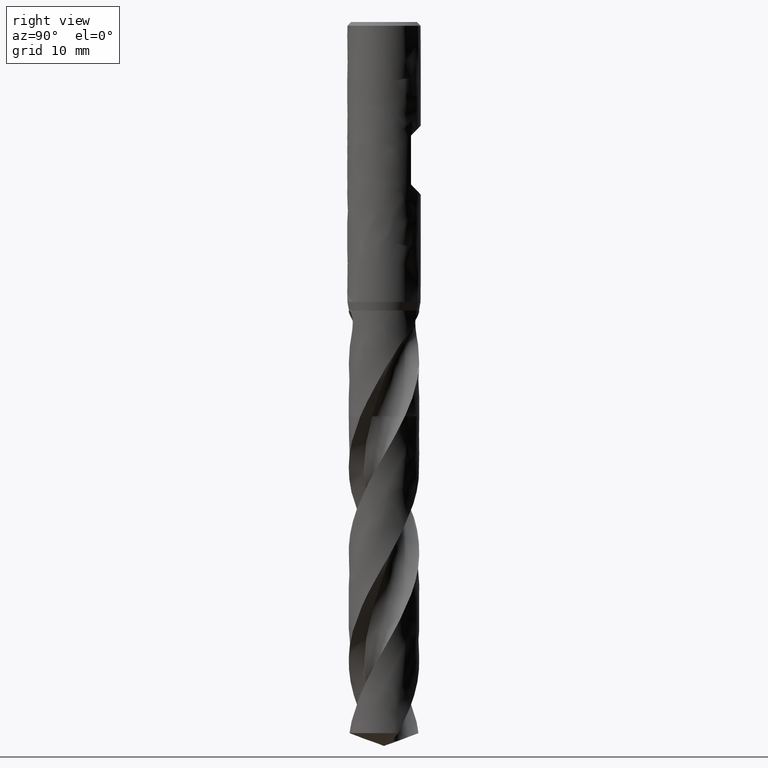
[diagram: clean part render]
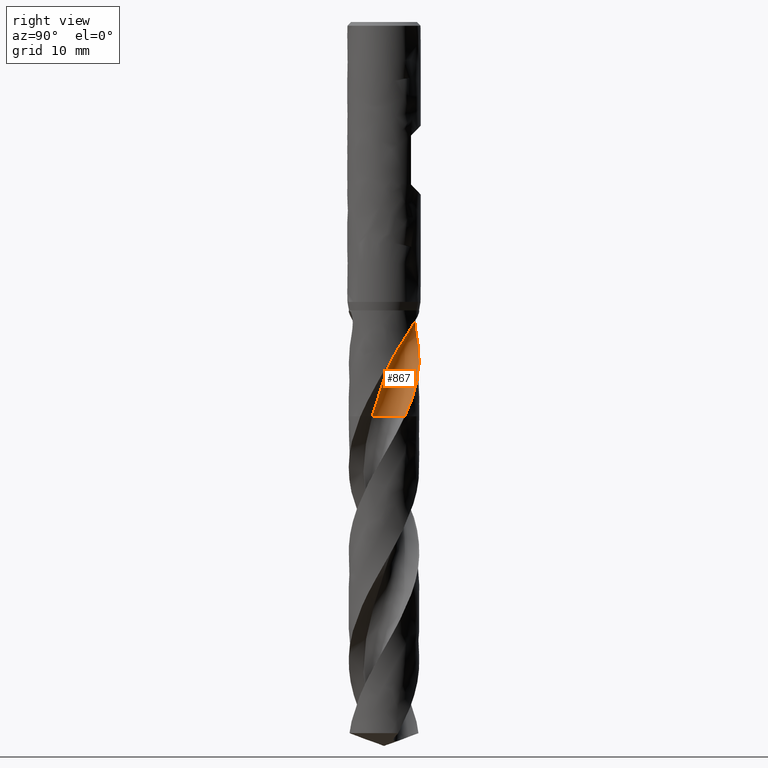
[diagram: same view with one face highlighted and labeled with its STEP entity id]
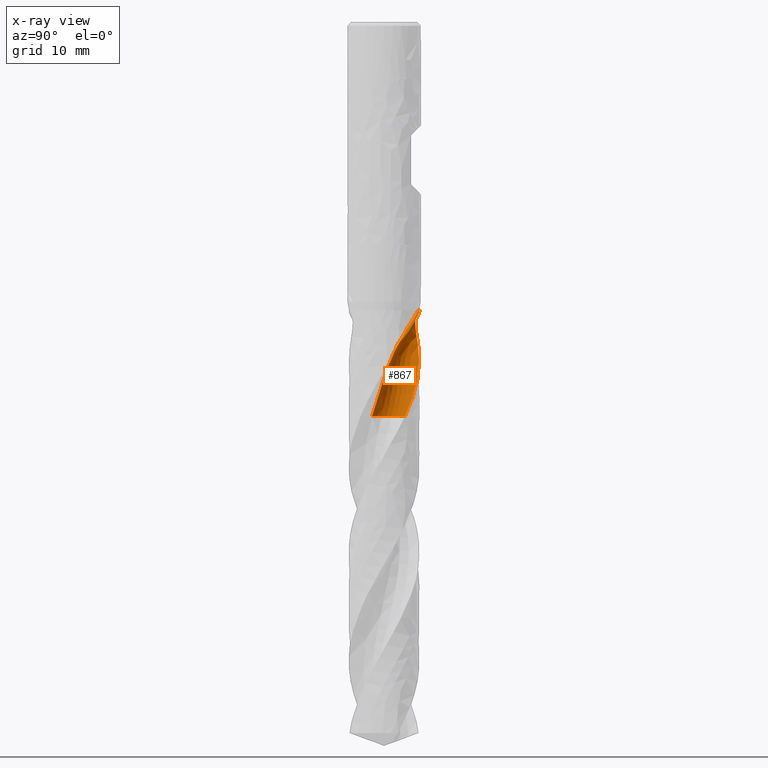
[diagram: x-ray of the same camera — body ghosted, the highlighted face saturated]
A machine part, right view. The second image highlights one B-rep face of the part: STEP entity #867.
The next image is the same camera in x-ray: the body ghosted, the highlighted face saturated — about 0% of this face is hidden behind the body in this view.
In plain terms, the highlighted face is a freeform B-spline surface patch.
Its self-contained STEP definition (entity closure, byte-faithful):
#252 = VERTEX_POINT('', #253);
#253 = CARTESIAN_POINT('', (-0.664754410634107, 5.7114447886277, -47.));
#260 = EDGE_CURVE('', #261, #252, #263, .T.);
#261 = VERTEX_POINT('', #262);
#262 = CARTESIAN_POINT('', (-0.954372345106729, 5.67388700982788, -46.98));
#263 = B_SPLINE_CURVE_WITH_KNOTS('', 3, (#264, #265, #266, #267, #268, #269, #270), .UNSPECIFIED., .F., .U., (4, 3, 4), (0., 0.196817261392043, 0.292900680336533), .UNSPECIFIED.);
#264 = CARTESIAN_POINT('', (-0.954372345050071, 5.67388700983743, -46.98));
#265 = CARTESIAN_POINT('', (-0.889673108887045, 5.68475519394751, -46.9800796579474));
#266 = CARTESIAN_POINT('', (-0.824621908757311, 5.69395484826379, -46.9833700583557));
#267 = CARTESIAN_POINT('', (-0.759728880211919, 5.70151754298538, -46.9893546574295));
#268 = CARTESIAN_POINT('', (-0.72804901634122, 5.70520954418561, -46.992276254529));
#269 = CARTESIAN_POINT('', (-0.696375920608476, 5.70851604167701, -46.9958427261837));
#270 = CARTESIAN_POINT('', (-0.664754410634167, 5.7114447886277, -47.));
#272 = EDGE_CURVE('', #273, #261, #275, .T.);
#273 = VERTEX_POINT('', #274);
#274 = CARTESIAN_POINT('', (-0.959180242780013, 5.6730762056629, -46.98));
#275 = LINE('', #276, #277);
#276 = CARTESIAN_POINT('', (-0.959180242780013, 5.6730762056629, -46.98));
#277 = VECTOR('', #278, 0.00487578541680345);
#278 = DIRECTION('', (0.00480789767328338, 0.000810804164980361, 0.));
#280 = EDGE_CURVE('', #273, #281, #283, .T.);
#281 = VERTEX_POINT('', #282);
#282 = CARTESIAN_POINT('', (-1.22275360408756, 5.61848499363404, -47.));
#283 = B_SPLINE_CURVE_WITH_KNOTS('', 3, (#284, #285, #286, #287, #288, #289, #290), .UNSPECIFIED., .F., .U., (4, 3, 4), (0., 0.197817445954899, 0.270103175527978), .UNSPECIFIED.);
#284 = CARTESIAN_POINT('', (-0.959180242787823, 5.67307620566158, -46.98));
#285 = CARTESIAN_POINT('', (-1.02419418911306, 5.66206931326532, -46.980080174174));
#286 = CARTESIAN_POINT('', (-1.08904966439381, 5.64933720727136, -46.983423732778));
#287 = CARTESIAN_POINT('', (-1.15299777331541, 5.63493927712078, -46.990586853441));
#288 = CARTESIAN_POINT('', (-1.17636545803049, 5.62967803800078, -46.9932043748665));
#289 = CARTESIAN_POINT('', (-1.19963255352973, 5.62419072658364, -46.9963336152621));
#290 = CARTESIAN_POINT('', (-1.22275360408753, 5.61848499363405, -47.));
#683 = VERTEX_POINT('', #684);
#684 = CARTESIAN_POINT('', (2.85427294277105, -1.92458653094202, -64.25));
#690 = EDGE_CURVE('', #683, #691, #693, .T.);
#691 = VERTEX_POINT('', #692);
#692 = CARTESIAN_POINT('', (4.07290109562731, 4.05881468722555, -50.3958224734813));
#693 = B_SPLINE_CURVE_WITH_KNOTS('', 3, (#694, #695, #696, #697, #698, #699, #700, #701, #702, #703, #704, #705, #706, #707, #708, #709, #710), .UNSPECIFIED., .F., .U., (4, 1, 1, 1, 1, 1, 1, 1, 1, 1, 1, 1, 1, 1, 4), (53.8, 54.0980597014925, 55.1588059701493, 56.219552238806, 57.2802985074627, 58.3410447761194, 59.4017910447761, 60.4625373134328, 61.5232835820896, 62.5840298507463, 63.644776119403, 64.7055223880597, 65.7662686567164, 66.8270149253731, 67.6541775265187), .UNSPECIFIED.);
#694 = CARTESIAN_POINT('', (2.85427294277105, -1.92458653094202, -64.25));
#695 = CARTESIAN_POINT('', (2.87399695657562, -1.89688687957887, -64.1506467661692));
#696 = CARTESIAN_POINT('', (2.96210833862529, -1.76924366394342, -63.6977114427861));
#697 = CARTESIAN_POINT('', (3.10404160179761, -1.53129938442744, -62.8911940298508));
#698 = CARTESIAN_POINT('', (3.25637007650234, -1.19944541939397, -61.830447761194));
#699 = CARTESIAN_POINT('', (3.37781179759161, -0.853258649123558, -60.7697014925373));
#700 = CARTESIAN_POINT('', (3.44277416145703, -0.491283940887161, -59.7089552238806));
#701 = CARTESIAN_POINT('', (3.44606539822317, -0.124563260132557, -58.6482089552239));
#702 = CARTESIAN_POINT('', (3.38566855335891, 0.236590920659753, -57.5874626865672));
#703 = CARTESIAN_POINT('', (3.27472603294861, 0.576809505504694, -56.5267164179105));
#704 = CARTESIAN_POINT('', (3.28881435116504, 0.938736952538879, -55.4659701492537));
#705 = CARTESIAN_POINT('', (3.38180518107454, 1.36005928558988, -54.405223880597));
#706 = CARTESIAN_POINT('', (3.54300397518063, 1.87531668939362, -53.3444776119403));
#707 = CARTESIAN_POINT('', (3.74252946590584, 2.5145298983049, -52.2837313432836));
#708 = CARTESIAN_POINT('', (3.93197343543839, 3.24407025792246, -51.3008462971306));
#709 = CARTESIAN_POINT('', (4.03484103101507, 3.79845085610073, -50.6715433405298));
#710 = CARTESIAN_POINT('', (4.07290109562731, 4.05881468722555, -50.3958224734813));
#867 = ADVANCED_FACE('', (#868), #1202, .T.);
#868 = FACE_OUTER_BOUND('', #869, .T.);
#869 = EDGE_LOOP('', (#870, #948, #993, #1004, #1137, #1138, #1139, #1140, #1201));
#870 = ORIENTED_EDGE('', *, *, #871, .T.);
#871 = EDGE_CURVE('', #683, #872, #874, .T.);
#872 = VERTEX_POINT('', #873);
#873 = CARTESIAN_POINT('', (4.62249029031134, 3.41980752615954, -64.25));
#874 = B_SPLINE_CURVE_WITH_KNOTS('', 3, (#875, #876, #877, #878, #879, #880, #881, #882, #883, #884, #885, #886, #887, #888, #889, #890, #891, #892, #893, #894, #895, #896, #897, #898, #899, #900, #901, #902, #903, #904, #905, #906, #907, #908, #909, #910, #911, #912, #913, #914, #915, #916, #917, #918, #919, #920, #921, #922, #923, #924, #925, #926, #927, #928, #929, #930, #931, #932, #933, #934, #935, #936, #937, #938, #939, #940, #941, #942, #943, #944, #945, #946, #947), .UNSPECIFIED., .F., .U., (4, 3, 3, 3, 3, 3, 3, 3, 3, 3, 3, 3, 3, 3, 3, 3, 3, 3, 3, 3, 3, 3, 3, 3, 4), (0., 0.297140151093783, 0.593989416282794, 0.890554132365704, 1.18683940260115, 1.48284918114889, 1.7785863373848, 2.07405270234201, 2.36924909887608, 2.66417535659184, 2.95883031207141, 3.25321179447637, 3.31153952167884, 3.60867903649739, 3.90552768050523, 4.20209178772877, 4.49837645886053, 4.79438564565391, 5.0901222151973, 5.38558799631866, 5.68078380971671, 5.97570948285573, 6.27036385016197, 6.564744738594, 6.58174929719078), .UNSPECIFIED.);
#875 = CARTESIAN_POINT('', (2.85427294277105, -1.92458653094202, -64.25));
#876 = CARTESIAN_POINT('', (2.79555179011013, -1.84482389316691, -64.25));
#877 = CARTESIAN_POINT('', (2.74021738511478, -1.76245405919901, -64.25));
#878 = CARTESIAN_POINT('', (2.68857712704352, -1.6779346182342, -64.25));
#879 = CARTESIAN_POINT('', (2.63698742229915, -1.59349791773367, -64.25));
#880 = CARTESIAN_POINT('', (2.58898923036808, -1.50675969772247, -64.25));
#881 = CARTESIAN_POINT('', (2.54484867455385, -1.41820087343353, -64.25));
#882 = CARTESIAN_POINT('', (2.50075043030031, -1.32972693847141, -64.25));
#883 = CARTESIAN_POINT('', (2.46042103385697, -1.23927261705622, -64.25));
#884 = CARTESIAN_POINT('', (2.42408366143789, -1.14733846845189, -64.25));
#885 = CARTESIAN_POINT('', (2.38778052885679, -1.05549094719961, -64.25));
#886 = CARTESIAN_POINT('', (2.35539501651412, -0.961997208430205, -64.25));
#887 = CARTESIAN_POINT('', (2.32710600336541, -0.867373657818004, -64.25));
#888 = CARTESIAN_POINT('', (2.29884329387996, -0.772838089985484, -64.25));
#889 = CARTESIAN_POINT('', (2.27461749222235, -0.677001004202918, -64.25));
#890 = CARTESIAN_POINT('', (2.2545621594177, -0.580390766862504, -64.25));
#891 = CARTESIAN_POINT('', (2.23452529739203, -0.483869506671362, -64.25));
#892 = CARTESIAN_POINT('', (2.21861444050567, -0.386399387202162, -64.25));
#893 = CARTESIAN_POINT('', (2.20691714677748, -0.288516790035155, -64.25));
#894 = CARTESIAN_POINT('', (2.19523056365857, -0.190723818919827, -64.25));
#895 = CARTESIAN_POINT('', (2.18772840910296, -0.0923399874178075, -64.25));
#896 = CARTESIAN_POINT('', (2.18445189227151, 0.00609428436804971, -64.25));
#897 = CARTESIAN_POINT('', (2.18117836920243, 0.104438616491431, -64.25));
#898 = CARTESIAN_POINT('', (2.18211676575838, 0.203013116911715, -64.25));
#899 = CARTESIAN_POINT('', (2.18726193675117, 0.301277305859331, -64.25));
#900 = CARTESIAN_POINT('', (2.19240239931788, 0.399451571717791, -64.25));
#901 = CARTESIAN_POINT('', (2.20175130847992, 0.497495276358613, -64.25));
#902 = CARTESIAN_POINT('', (2.21525749821405, 0.594871832423781, -64.25));
#903 = CARTESIAN_POINT('', (2.22875126362387, 0.69215881193643, -64.25));
#904 = CARTESIAN_POINT('', (2.24641923345215, 0.788957108422081, -64.25));
#905 = CARTESIAN_POINT('', (2.26816488952794, 0.884737923460706, -64.25));
#906 = CARTESIAN_POINT('', (2.28989036317911, 0.980429843086271, -64.25));
#907 = CARTESIAN_POINT('', (2.3157254498082, 1.07528018080048, -64.25));
#908 = CARTESIAN_POINT('', (2.34552927668432, 1.16877173972711, -64.25));
#909 = CARTESIAN_POINT('', (2.35143450370274, 1.18729583336322, -64.25));
#910 = CARTESIAN_POINT('', (2.35749653622065, 1.20577066856832, -64.25));
#911 = CARTESIAN_POINT('', (2.36371407486612, 1.22419228533696, -64.25));
#912 = CARTESIAN_POINT('', (2.39538814318819, 1.31803770896892, -64.25));
#913 = CARTESIAN_POINT('', (2.43114020446496, 1.41060354344542, -64.25));
#914 = CARTESIAN_POINT('', (2.47077164609501, 1.50137555992108, -64.25));
#915 = CARTESIAN_POINT('', (2.51036429238152, 1.59205871938276, -64.25));
#916 = CARTESIAN_POINT('', (2.55390192176157, 1.68111925377505, -64.25));
#917 = CARTESIAN_POINT('', (2.60114314328128, 1.76806337398596, -64.25));
#918 = CARTESIAN_POINT('', (2.64833908291902, 1.85492415610225, -64.25));
#919 = CARTESIAN_POINT('', (2.69931860404792, 1.93983288641168, -64.25));
#920 = CARTESIAN_POINT('', (2.75379959558101, 2.02231969596154, -64.25));
#921 = CARTESIAN_POINT('', (2.80822925266405, 2.10472878271514, -64.25));
#922 = CARTESIAN_POINT('', (2.86625403154324, 2.18487231581449, -64.25));
#923 = CARTESIAN_POINT('', (2.92755343798605, 2.26230763023562, -64.25));
#924 = CARTESIAN_POINT('', (2.98879584847844, 2.33967094560165, -64.25));
#925 = CARTESIAN_POINT('', (3.05341938656399, 2.41447332250167, -64.25));
#926 = CARTESIAN_POINT('', (3.12106777294792, 2.48630236417002, -64.25));
#927 = CARTESIAN_POINT('', (3.18865385681597, 2.55806525304081, -64.25));
#928 = CARTESIAN_POINT('', (3.25938324178674, 2.62699198818, -64.25));
#929 = CARTESIAN_POINT('', (3.33286670304785, 2.69270326478293, -64.25));
#930 = CARTESIAN_POINT('', (3.40628287986541, 2.75835437347043, -64.25));
#931 = CARTESIAN_POINT('', (3.48258256723036, 2.82091618063844, -64.25));
#932 = CARTESIAN_POINT('', (3.56134665438505, 2.88004503708853, -64.25));
#933 = CARTESIAN_POINT('', (3.64003877462294, 2.93911986737458, -64.25));
#934 = CARTESIAN_POINT('', (3.72133467115854, 2.99487604545239, -64.25));
#935 = CARTESIAN_POINT('', (3.80478860382699, 3.0470078637885, -64.25));
#936 = CARTESIAN_POINT('', (3.88816616594422, 3.09909197513735, -64.25));
#937 = CARTESIAN_POINT('', (3.97384998397809, 3.14765342956558, -64.25));
#938 = CARTESIAN_POINT('', (4.06137111735051, 3.19242645417659, -64.25));
#939 = CARTESIAN_POINT('', (4.14881173893255, 3.23715829151963, -64.25));
#940 = CARTESIAN_POINT('', (4.23824558874196, 3.27819017027593, -64.25));
#941 = CARTESIAN_POINT('', (4.32918410146668, 3.31529793870997, -64.25));
#942 = CARTESIAN_POINT('', (4.42003821102334, 3.35237126614512, -64.25));
#943 = CARTESIAN_POINT('', (4.51255939711496, 3.38559519200917, -64.25));
#944 = CARTESIAN_POINT('', (4.60624316522159, 3.41478855467592, -64.25));
#945 = CARTESIAN_POINT('', (4.61165469561278, 3.41647487422183, -64.25));
#946 = CARTESIAN_POINT('', (4.6170704370617, 3.41814787423554, -64.25));
#947 = CARTESIAN_POINT('', (4.62249029072458, 3.41980752481004, -64.25));
#948 = ORIENTED_EDGE('', *, *, #949, .F.);
#949 = EDGE_CURVE('', #950, #872, #952, .T.);
#950 = VERTEX_POINT('', #951);
#951 = CARTESIAN_POINT('', (1.91343511449502, 5.42229343199144, -58.2440826539286));
#952 = B_SPLINE_CURVE_WITH_KNOTS('', 3, (#953, #954, #955, #956, #957, #958, #959, #960, #961, #962, #963, #964, #965, #966, #967, #968, #969, #970, #971, #972, #973, #974, #975, #976, #977, #978, #979, #980, #981, #982, #983, #984, #985, #986, #987, #988, #989, #990, #991, #992), .UNSPECIFIED., .F., .U., (4, 3, 3, 3, 3, 3, 3, 3, 3, 3, 3, 3, 3, 4), (0., 0.443562925500025, 1.10892306190937, 1.7742623732252, 2.43954967252873, 2.88299910269086, 3.32643719244301, 3.76988934885671, 4.06549811813903, 4.36109313134654, 5.0261719091103, 5.46953466938533, 6.46691695922519, 6.91086626671248), .UNSPECIFIED.);
#953 = CARTESIAN_POINT('', (1.91343511449502, 5.42229343199144, -58.2440826539286));
#954 = CARTESIAN_POINT('', (1.97995384648725, 5.39882010300952, -58.3740255554765));
#955 = CARTESIAN_POINT('', (2.04630397777944, 5.37402934506557, -58.5038237912462));
#956 = CARTESIAN_POINT('', (2.11240704402111, 5.3479188924637, -58.6334753451914));
#957 = CARTESIAN_POINT('', (2.21156399029217, 5.30875228654121, -58.827957279229));
#958 = CARTESIAN_POINT('', (2.31018455731201, 5.26660757105578, -59.0221374788284));
#959 = CARTESIAN_POINT('', (2.40802198294162, 5.22148734841615, -59.2159965754306));
#960 = CARTESIAN_POINT('', (2.50585634635961, 5.17636853799347, -59.4098496044409));
#961 = CARTESIAN_POINT('', (2.60292789197036, 5.12826525054914, -59.6034184835201));
#962 = CARTESIAN_POINT('', (2.69899987452382, 5.07719407520778, -59.7966752448334));
#963 = CARTESIAN_POINT('', (2.79506434677832, 5.02612689228737, -59.9899168985574));
#964 = CARTESIAN_POINT('', (2.89014151133316, 4.97208445550826, -60.1828892383361));
#965 = CARTESIAN_POINT('', (2.98394378071256, 4.91513779191898, -60.3755983157048));
#966 = CARTESIAN_POINT('', (3.04646799085118, 4.87717980663242, -60.5040491829251));
#967 = CARTESIAN_POINT('', (3.10843312889896, 4.83792785425173, -60.6323976790985));
#968 = CARTESIAN_POINT('', (3.16975761278236, 4.79740937133871, -60.7606445933265));
#969 = CARTESIAN_POINT('', (3.23108052840398, 4.75689192461195, -60.8888882278736));
#970 = CARTESIAN_POINT('', (3.29177109437863, 4.71510218913478, -61.0170402107663));
#971 = CARTESIAN_POINT('', (3.35173164300436, 4.67208679213939, -61.1451144138724));
#972 = CARTESIAN_POINT('', (3.41169409368759, 4.62907003061749, -61.2731926797249));
#973 = CARTESIAN_POINT('', (3.47093174020917, 4.58482316124014, -61.4012050756109));
#974 = CARTESIAN_POINT('', (3.52932316587992, 4.53942485242166, -61.5291871619047));
#975 = CARTESIAN_POINT('', (3.56824735923319, 4.5091619751231, -61.6145010485829));
#976 = CARTESIAN_POINT('', (3.60679705821153, 4.4783865553857, -61.6998063421335));
#977 = CARTESIAN_POINT('', (3.64493161607636, 4.44713093062561, -61.7851189159316));
#978 = CARTESIAN_POINT('', (3.68306439935977, 4.41587676033764, -61.8704275197319));
#979 = CARTESIAN_POINT('', (3.72077943680059, 4.38414497691252, -61.9557502260126));
#980 = CARTESIAN_POINT('', (3.75806429494864, 4.35194815628958, -62.0410830702072));
#981 = CARTESIAN_POINT('', (3.84195396418602, 4.27950639932139, -62.2330790822651));
#982 = CARTESIAN_POINT('', (3.92368071157395, 4.20469824716227, -62.4251538953002));
#983 = CARTESIAN_POINT('', (4.00315667533455, 4.12761876058394, -62.6172217930256));
#984 = CARTESIAN_POINT('', (4.05613789176563, 4.0762351124019, -62.7452603895691));
#985 = CARTESIAN_POINT('', (4.10812744611462, 4.02383373764264, -62.8733087887391));
#986 = CARTESIAN_POINT('', (4.15909944079365, 3.97043975418215, -63.0013404609476));
#987 = CARTESIAN_POINT('', (4.27376528403934, 3.85032544089507, -63.2893586118635));
#988 = CARTESIAN_POINT('', (4.38329630485905, 3.72515840711746, -63.577403684765));
#989 = CARTESIAN_POINT('', (4.48716488601533, 3.59553212831022, -63.8653941443498));
#990 = CARTESIAN_POINT('', (4.53339829635734, 3.53783359356096, -63.9935828703759));
#991 = CARTESIAN_POINT('', (4.57852433674508, 3.47923548867196, -64.1218036239869));
#992 = CARTESIAN_POINT('', (4.62249029031134, 3.41980752615954, -64.25));
#993 = ORIENTED_EDGE('', *, *, #994, .T.);
#994 = EDGE_CURVE('', #950, #995, #997, .T.);
#995 = VERTEX_POINT('', #996);
#996 = CARTESIAN_POINT('', (0.423909315801476, 5.73435270034699, -55.5730162168472));
#997 = B_SPLINE_CURVE_WITH_KNOTS('', 3, (#998, #999, #1000, #1001, #1002, #1003), .UNSPECIFIED., .F., .U., (4, 1, 1, 4), (59.8059173460714, 60.4625373134328, 61.5232835820896, 62.4769837831528), .UNSPECIFIED.);
#998 = CARTESIAN_POINT('', (1.91343511449502, 5.42229343199144, -58.2440826539286));
#999 = CARTESIAN_POINT('', (1.78954210884358, 5.44742388202134, -58.0252093314748));
#1000 = CARTESIAN_POINT('', (1.46298408112562, 5.49655369569473, -57.4527539194687));
#1001 = CARTESIAN_POINT('', (0.958187522851964, 5.51054564419166, -56.5623984404416));
#1002 = CARTESIAN_POINT('', (0.599308370401399, 5.64747020475554, -55.8909162838683));
#1003 = CARTESIAN_POINT('', (0.423909315801475, 5.73435270034699, -55.5730162168472));
#1004 = ORIENTED_EDGE('', *, *, #1005, .T.);
#1005 = EDGE_CURVE('', #995, #281, #1006, .T.);
#1006 = B_SPLINE_CURVE_WITH_KNOTS('', 3, (#1007, #1008, #1009, #1010, #1011, #1012, #1013, #1014, #1015, #1016, #1017, #1018, #1019, #1020, #1021, #1022, #1023, #1024, #1025, #1026, #1027, #1028, #1029, #1030, #1031, #1032, #1033, #1034, #1035, #1036, #1037, #1038, #1039, #1040, #1041, #1042, #1043, #1044, #1045, #1046, #1047, #1048, #1049, #1050, #1051, #1052, #1053, #1054, #1055, #1056, #1057, #1058, #1059, #1060, #1061, #1062, #1063, #1064, #1065, #1066, #1067, #1068, #1069, #1070, #1071, #1072, #1073, #1074, #1075, #1076, #1077, #1078, #1079, #1080, #1081, #1082, #1083, #1084, #1085, #1086, #1087, #1088, #1089, #1090, #1091, #1092, #1093, #1094, #1095, #1096, #1097, #1098, #1099, #1100, #1101, #1102, #1103, #1104, #1105, #1106, #1107, #1108, #1109, #1110, #1111, #1112, #1113, #1114, #1115, #1116, #1117, #1118, #1119, #1120, #1121, #1122, #1123, #1124, #1125, #1126, #1127, #1128, #1129, #1130, #1131, #1132, #1133, #1134, #1135, #1136), .UNSPECIFIED., .F., .U., (4, 3, 3, 3, 3, 3, 3, 3, 3, 3, 3, 3, 3, 3, 3, 3, 3, 3, 3, 3, 3, 3, 3, 3, 3, 3, 3, 3, 3, 3, 3, 3, 3, 3, 3, 3, 3, 3, 3, 3, 3, 3, 3, 4), (0., 0.196934936986051, 0.639695864307723, 0.72723941647453, 0.785611992756981, 1.22931498381959, 1.52492324830761, 1.82045149734307, 2.11589777068747, 2.41125946720295, 2.70653460722115, 3.00171847220104, 3.29680721159822, 3.5918039594324, 3.88671273943952, 4.18153761141342, 4.47628330666319, 4.77096191168983, 5.06558751514685, 5.36017551554602, 5.65474342085264, 5.9493206146357, 6.2439430862134, 6.53865476439575, 6.83351401576397, 7.12860083674201, 7.42402036487428, 7.71991187489202, 7.91732665865085, 7.95627004865038, 8.15405795723778, 8.35217404092859, 8.55065896860591, 8.74952691796219, 8.88179526942686, 9.01413525176902, 9.14651585304514, 9.27889800401814, 9.41123886598623, 9.54349755662759, 9.67564056946268, 9.80764523240506, 10.0058848494969, 10.207900228472), .UNSPECIFIED.);
#1007 = CARTESIAN_POINT('', (0.423909315801471, 5.73435270034699, -55.5730162168472));
#1008 = CARTESIAN_POINT('', (0.388046779641487, 5.73700382139951, -55.5180970642259));
#1009 = CARTESIAN_POINT('', (0.351985551122402, 5.73933119538297, -55.4632906719108));
#1010 = CARTESIAN_POINT('', (0.315758092371031, 5.74132361281807, -55.4085835903538));
#1011 = CARTESIAN_POINT('', (0.234309348553672, 5.74580308509802, -55.2855878510912));
#1012 = CARTESIAN_POINT('', (0.152008752880573, 5.74858632163446, -55.1630804246358));
#1013 = CARTESIAN_POINT('', (0.0692418228182757, 5.74958307792599, -55.0408897654877));
#1014 = CARTESIAN_POINT('', (0.0528769843411645, 5.74978015851964, -55.0167299905768));
#1015 = CARTESIAN_POINT('', (0.0364936594536526, 5.74990757622059, -54.9925820605213));
#1016 = CARTESIAN_POINT('', (0.0200949102711407, 5.74996488637811, -54.9684445535315));
#1017 = CARTESIAN_POINT('', (0.00916049861088486, 5.75000309983254, -54.9523500676082));
#1018 = CARTESIAN_POINT('', (-0.00178080777254429, 5.75001014541875, -54.9362601598499));
#1019 = CARTESIAN_POINT('', (-0.0127280954573237, 5.7499859126424, -54.9201744021469));
#1020 = CARTESIAN_POINT('', (-0.095940874455735, 5.74980171389645, -54.7979029647547));
#1021 = CARTESIAN_POINT('', (-0.179507639307078, 5.74780530901877, -54.6758617698521));
#1022 = CARTESIAN_POINT('', (-0.263019552247358, 5.74398125999168, -54.5538542210452));
#1023 = CARTESIAN_POINT('', (-0.318657697911487, 5.74143356362951, -54.4725691260972));
#1024 = CARTESIAN_POINT('', (-0.374276226507173, 5.73807562980194, -54.3912919577505));
#1025 = CARTESIAN_POINT('', (-0.429750010043708, 5.73391793879791, -54.3099609451166));
#1026 = CARTESIAN_POINT('', (-0.485208777897571, 5.7297613732006, -54.2286519472183));
#1027 = CARTESIAN_POINT('', (-0.540525689846954, 5.72480528528835, -54.1472828715825));
#1028 = CARTESIAN_POINT('', (-0.595577557462688, 5.71907224758067, -54.0657934289576));
#1029 = CARTESIAN_POINT('', (-0.650614154406643, 5.71334080014305, -53.9843265904437));
#1030 = CARTESIAN_POINT('', (-0.705389805332268, 5.70683247049863, -53.9027336859077));
#1031 = CARTESIAN_POINT('', (-0.759786867862397, 5.69958102981475, -53.8209590048234));
#1032 = CARTESIAN_POINT('', (-0.814168358251443, 5.69233166498666, -53.7392077332176));
#1033 = CARTESIAN_POINT('', (-0.868175622957209, 5.6843391009592, -53.6572686749971));
#1034 = CARTESIAN_POINT('', (-0.921695592897352, 5.67564773695776, -53.5750905562191));
#1035 = CARTESIAN_POINT('', (-0.97519987867402, 5.66695891998268, -53.492936519948));
#1036 = CARTESIAN_POINT('', (-1.0282215902391, 5.65757101976812, -53.4105369860157));
#1037 = CARTESIAN_POINT('', (-1.08065092632506, 5.6475387183651, -53.327844740559));
#1038 = CARTESIAN_POINT('', (-1.13306405552797, 5.63750951813305, -53.2451780568135));
#1039 = CARTESIAN_POINT('', (-1.18488911756946, 5.62683550922524, -53.1622110451954));
#1040 = CARTESIAN_POINT('', (-1.23601110968488, 5.61558336566519, -53.078895783934));
#1041 = CARTESIAN_POINT('', (-1.28711662729113, 5.60433484820684, -52.9956073717443));
#1042 = CARTESIAN_POINT('', (-1.33752463855999, 5.59250747941773, -52.9119627943221));
#1043 = CARTESIAN_POINT('', (-1.38712356780944, 5.58017815196143, -52.8279199684434));
#1044 = CARTESIAN_POINT('', (-1.43670703498794, 5.56785266807471, -52.743903342246));
#1045 = CARTESIAN_POINT('', (-1.4854875034396, 5.55502417565757, -52.6594794887225));
#1046 = CARTESIAN_POINT('', (-1.53335502068938, 5.54177971237821, -52.574611849231));
#1047 = CARTESIAN_POINT('', (-1.58120826387847, 5.52853919858868, -52.4897695172111));
#1048 = CARTESIAN_POINT('', (-1.62815520849994, 5.51488128387929, -52.4044731092945));
#1049 = CARTESIAN_POINT('', (-1.67408534177523, 5.50090340475575, -52.3186913679726));
#1050 = CARTESIAN_POINT('', (-1.72000240691756, 5.4869295026462, -52.2329340334425));
#1051 = CARTESIAN_POINT('', (-1.76490997889792, 5.472633748265, -52.1466794309217));
#1052 = CARTESIAN_POINT('', (-1.80869220268447, 5.45812536645582, -52.0599004531981));
#1053 = CARTESIAN_POINT('', (-1.85246266853136, 5.44362088094662, -51.973144780412));
#1054 = CARTESIAN_POINT('', (-1.89511570430957, 5.42890149634997, -51.8858506979129));
#1055 = CARTESIAN_POINT('', (-1.93653442663408, 5.41408666484581, -51.7979997403232));
#1056 = CARTESIAN_POINT('', (-1.97794372119979, 5.39927520550405, -51.7101687794305));
#1057 = CARTESIAN_POINT('', (-2.01812742625917, 5.38436545424253, -51.6217643650708));
#1058 = CARTESIAN_POINT('', (-2.05696432601646, 5.36948766284978, -51.5327771006105));
#1059 = CARTESIAN_POINT('', (-2.09579424047991, 5.3546125474107, -51.4438058416037));
#1060 = CARTESIAN_POINT('', (-2.13328684558339, 5.33976595252493, -51.3542319363624));
#1061 = CARTESIAN_POINT('', (-2.16931203919096, 5.32509016605557, -51.2640558698987));
#1062 = CARTESIAN_POINT('', (-2.20533263490404, 5.31041625265645, -51.1738913126039));
#1063 = CARTESIAN_POINT('', (-2.23989617869979, 5.29590904383867, -51.0831006739394));
#1064 = CARTESIAN_POINT('', (-2.2728556524008, 5.28172577699286, -50.9916951900937));
#1065 = CARTESIAN_POINT('', (-2.30581287779681, 5.26754347764762, -50.9002959414024));
#1066 = CARTESIAN_POINT('', (-2.33717709340379, 5.25368049380168, -50.8082525838048));
#1067 = CARTESIAN_POINT('', (-2.36678566306006, 5.24030777961899, -50.7155938437952));
#1068 = CARTESIAN_POINT('', (-2.39639516634995, 5.22693464376055, -50.6229321820196));
#1069 = CARTESIAN_POINT('', (-2.42426094211788, 5.21404648616265, -50.5296189646585));
#1070 = CARTESIAN_POINT('', (-2.45019624417012, 5.20183028991283, -50.4357047928449));
#1071 = CARTESIAN_POINT('', (-2.47613553259099, 5.18961221598057, -50.341776186015));
#1072 = CARTESIAN_POINT('', (-2.50015684747859, 5.17806030778609, -50.2472012797));
#1073 = CARTESIAN_POINT('', (-2.5220375631729, 5.16738101265476, -50.1520598159126));
#1074 = CARTESIAN_POINT('', (-2.54392490397066, 5.156698484017, -50.0568895449304));
#1075 = CARTESIAN_POINT('', (-2.56368358865986, 5.14688292823986, -49.9610948019276));
#1076 = CARTESIAN_POINT('', (-2.58104369216972, 5.13816245939255, -49.8647976949445));
#1077 = CARTESIAN_POINT('', (-2.59841248853422, 5.12943762387957, -49.7684523683897));
#1078 = CARTESIAN_POINT('', (-2.61339456512413, 5.12180230587836, -49.6715299809288));
#1079 = CARTESIAN_POINT('', (-2.62565802906502, 5.11550778656493, -49.5742149961135));
#1080 = CARTESIAN_POINT('', (-2.63793095783258, 5.10920840920042, -49.4768249045039));
#1081 = CARTESIAN_POINT('', (-2.64749445384261, 5.10424585566792, -49.3789436534844));
#1082 = CARTESIAN_POINT('', (-2.65393065139595, 5.10089718555286, -49.2808493180264));
#1083 = CARTESIAN_POINT('', (-2.66037410569145, 5.09754473984897, -49.182644382281));
#1084 = CARTESIAN_POINT('', (-2.66369235328115, 5.09580643193983, -49.0840935036182));
#1085 = CARTESIAN_POINT('', (-2.66335519330562, 5.09598264462233, -48.9856210624357));
#1086 = CARTESIAN_POINT('', (-2.66301749466089, 5.09615913883394, -48.886991295132));
#1087 = CARTESIAN_POINT('', (-2.65901174247303, 5.09825897755518, -48.7882578166865));
#1088 = CARTESIAN_POINT('', (-2.65068482672605, 5.10258463421866, -48.6900746849503));
#1089 = CARTESIAN_POINT('', (-2.64512922199961, 5.10547065340448, -48.6245682372686));
#1090 = CARTESIAN_POINT('', (-2.63764071987588, 5.1093511342288, -48.5592240881711));
#1091 = CARTESIAN_POINT('', (-2.62799608774412, 5.11430704619909, -48.4943187066832));
#1092 = CARTESIAN_POINT('', (-2.62609352166797, 5.11528468327868, -48.4815150273628));
#1093 = CARTESIAN_POINT('', (-2.62410674533065, 5.11630425341371, -48.4687266914609));
#1094 = CARTESIAN_POINT('', (-2.62203396119915, 5.11736630566137, -48.4559562041155));
#1095 = CARTESIAN_POINT('', (-2.61150658702019, 5.12276031714516, -48.3910967251711));
#1096 = CARTESIAN_POINT('', (-2.59874956365067, 5.12925835272396, -48.3266293666073));
#1097 = CARTESIAN_POINT('', (-2.58352165265581, 5.13691696158879, -48.2629416172915));
#1098 = CARTESIAN_POINT('', (-2.56826847509486, 5.14458827782676, -48.1991481955214));
#1099 = CARTESIAN_POINT('', (-2.55050507591316, 5.15344014310909, -48.1360169208607));
#1100 = CARTESIAN_POINT('', (-2.52999902663889, 5.16348767067437, -48.0740519443606));
#1101 = CARTESIAN_POINT('', (-2.50945480008583, 5.17355390429346, -48.0119716041378));
#1102 = CARTESIAN_POINT('', (-2.48610456988855, 5.18484648686096, -47.9509148346063));
#1103 = CARTESIAN_POINT('', (-2.45976728154776, 5.19731131650079, -47.8915150180155));
#1104 = CARTESIAN_POINT('', (-2.43337916943653, 5.2098001998561, -47.8320005760083));
#1105 = CARTESIAN_POINT('', (-2.40390800527317, 5.22350536624751, -47.7739752615113));
#1106 = CARTESIAN_POINT('', (-2.3712893773148, 5.238271345495, -47.7181875886556));
#1107 = CARTESIAN_POINT('', (-2.3495945181831, 5.24809229321005, -47.6810828488291));
#1108 = CARTESIAN_POINT('', (-2.32646844673295, 5.25839910812936, -47.644897016855));
#1109 = CARTESIAN_POINT('', (-2.30193759866315, 5.26911598770285, -47.6098646656702));
#1110 = CARTESIAN_POINT('', (-2.27739346573606, 5.27983867107959, -47.5748133424635));
#1111 = CARTESIAN_POINT('', (-2.25139893505073, 5.29099082630964, -47.5408556612357));
#1112 = CARTESIAN_POINT('', (-2.22402606227966, 5.30247188340546, -47.5082229043387));
#1113 = CARTESIAN_POINT('', (-2.19664478798933, 5.31395646436678, -47.4755801315131));
#1114 = CARTESIAN_POINT('', (-2.16783170080634, 5.32579183862291, -47.444201718676));
#1115 = CARTESIAN_POINT('', (-2.13770778653021, 5.33785588222575, -47.4142987248461));
#1116 = CARTESIAN_POINT('', (-2.10758351961227, 5.3499200670548, -47.3843953809605));
#1117 = CARTESIAN_POINT('', (-2.07608834219932, 5.36223656799132, -47.3559085193657));
#1118 = CARTESIAN_POINT('', (-2.04338878609481, 5.37466857293219, -47.3290122320348));
#1119 = CARTESIAN_POINT('', (-2.01069942873782, 5.3870967004235, -47.3021243334551));
#1120 = CARTESIAN_POINT('', (-1.97674098798475, 5.39966478272985, -47.2767720689956));
#1121 = CARTESIAN_POINT('', (-1.94171533703423, 5.41223073694462, -47.2530800429626));
#1122 = CARTESIAN_POINT('', (-1.90671143374475, 5.42478888887434, -47.2294027274671));
#1123 = CARTESIAN_POINT('', (-1.87057344112155, 5.43736912985644, -47.2073367351235));
#1124 = CARTESIAN_POINT('', (-1.83352374668074, 5.44983400392701, -47.1869518693965));
#1125 = CARTESIAN_POINT('', (-1.79650645712278, 5.46228797580824, -47.1665848329442));
#1126 = CARTESIAN_POINT('', (-1.75851092783724, 5.47464958853816, -47.1478574142273));
#1127 = CARTESIAN_POINT('', (-1.71976421194311, 5.4867942421163, -47.130787068227));
#1128 = CARTESIAN_POINT('', (-1.68105806273406, 5.49892618059522, -47.1137345943827));
#1129 = CARTESIAN_POINT('', (-1.64153675238228, 5.51086217441244, -47.0983056592697));
#1130 = CARTESIAN_POINT('', (-1.60141848122617, 5.52249570828154, -47.0844737399806));
#1131 = CARTESIAN_POINT('', (-1.54117037684029, 5.53996651005648, -47.0637014860133));
#1132 = CARTESIAN_POINT('', (-1.4794102027226, 5.55679934118009, -47.0464787799423));
#1133 = CARTESIAN_POINT('', (-1.41679963883413, 5.57271736080339, -47.0325833320375));
#1134 = CARTESIAN_POINT('', (-1.3529965656779, 5.58893856226609, -47.0184232251138));
#1135 = CARTESIAN_POINT('', (-1.28812359363584, 5.60425849122104, -47.0076706743321));
#1136 = CARTESIAN_POINT('', (-1.22275360408754, 5.61848499363405, -47.));
#1137 = ORIENTED_EDGE('', *, *, #280, .F.);
#1138 = ORIENTED_EDGE('', *, *, #272, .T.);
#1139 = ORIENTED_EDGE('', *, *, #260, .T.);
#1140 = ORIENTED_EDGE('', *, *, #1141, .F.);
#1141 = EDGE_CURVE('', #691, #252, #1142, .T.);
#1142 = B_SPLINE_CURVE_WITH_KNOTS('', 3, (#1143, #1144, #1145, #1146, #1147, #1148, #1149, #1150, #1151, #1152, #1153, #1154, #1155, #1156, #1157, #1158, #1159, #1160, #1161, #1162, #1163, #1164, #1165, #1166, #1167, #1168, #1169, #1170, #1171, #1172, #1173, #1174, #1175, #1176, #1177, #1178, #1179, #1180, #1181, #1182, #1183, #1184, #1185, #1186, #1187, #1188, #1189, #1190, #1191, #1192, #1193, #1194, #1195, #1196, #1197, #1198, #1199, #1200), .UNSPECIFIED., .F., .U., (4, 3, 3, 3, 3, 3, 3, 3, 3, 3, 3, 3, 3, 3, 3, 3, 3, 3, 3, 4), (0., 0.447016472100389, 0.894195282930524, 1.34149781125237, 1.78888998605159, 2.23632814394527, 2.68375919471959, 3.13114117678853, 3.57842228421277, 4.0255361223479, 4.32262951476591, 4.61961299544637, 4.91645475613438, 5.2131139889188, 5.50953782020672, 5.64099475465222, 5.66695233494707, 5.96568525487832, 6.1639628865178, 6.33233071130661), .UNSPECIFIED.);
#1143 = CARTESIAN_POINT('', (4.07290109562731, 4.05881468722555, -50.3958224734813));
#1144 = CARTESIAN_POINT('', (4.0050459049763, 4.12690537419786, -50.2819718357662));
#1145 = CARTESIAN_POINT('', (3.93410358879567, 4.19467689907852, -50.1697125110395));
#1146 = CARTESIAN_POINT('', (3.86004041102603, 4.26175879482239, -50.0591806096677));
#1147 = CARTESIAN_POINT('', (3.78595033643502, 4.3288650520617, -49.9486085674743));
#1148 = CARTESIAN_POINT('', (3.70869518454316, 4.39531862148993, -49.8396966481814));
#1149 = CARTESIAN_POINT('', (3.62827657644825, 4.46072965834033, -49.7325845146081));
#1150 = CARTESIAN_POINT('', (3.54783571956103, 4.52615879195474, -49.625442747152));
#1151 = CARTESIAN_POINT('', (3.46417753978369, 4.59058703654609, -49.5200322150992));
#1152 = CARTESIAN_POINT('', (3.37732917341141, 4.65361662091155, -49.4165155784214));
#1153 = CARTESIAN_POINT('', (3.29046340125755, 4.71665883739922, -49.3129781953778));
#1154 = CARTESIAN_POINT('', (3.20034443205067, 4.77834645306184, -49.2112617509903));
#1155 = CARTESIAN_POINT('', (3.10702698165548, 4.83827276362804, -49.1115588730342));
#1156 = CARTESIAN_POINT('', (3.0136999400663, 4.89820523343741, -49.0118457475881));
#1157 = CARTESIAN_POINT('', (2.91710038247433, 4.95642258929871, -48.9140685009295));
#1158 = CARTESIAN_POINT('', (2.81732706316927, 5.01250119392844, -48.8184389036643));
#1159 = CARTESIAN_POINT('', (2.71755532866622, 5.06857890780415, -48.7228108253821));
#1160 = CARTESIAN_POINT('', (2.61452300990922, 5.12256666475284, -48.629246690503));
#1161 = CARTESIAN_POINT('', (2.50835881684487, 5.17403479365539, -48.5380105453988));
#1162 = CARTESIAN_POINT('', (2.40220626655655, 5.22549727816995, -48.4467844059468));
#1163 = CARTESIAN_POINT('', (2.29281877073401, 5.27449075312905, -48.3577960975829));
#1164 = CARTESIAN_POINT('', (2.18036082252888, 5.32057578496738, -48.2713765425598));
#1165 = CARTESIAN_POINT('', (2.06792823107932, 5.36665042566033, -48.1849764732162));
#1166 = CARTESIAN_POINT('', (1.95230160826581, 5.40986875125815, -48.1010471871551));
#1167 = CARTESIAN_POINT('', (1.83368996839407, 5.44977807803318, -48.0200073411476));
#1168 = CARTESIAN_POINT('', (1.71512268560414, 5.48967247995534, -47.9389978015339));
#1169 = CARTESIAN_POINT('', (1.59342030748468, 5.52631095352388, -47.8607702303353));
#1170 = CARTESIAN_POINT('', (1.46885017751276, 5.55922469019024, -47.7858617660688));
#1171 = CARTESIAN_POINT('', (1.3860771578682, 5.58109485579314, -47.7360873957148));
#1172 = CARTESIAN_POINT('', (1.30197240603576, 5.60133840196518, -47.6877399693899));
#1173 = CARTESIAN_POINT('', (1.21663358917948, 5.61981340523689, -47.6410160412546));
#1174 = CARTESIAN_POINT('', (1.13132634400363, 5.63828157355448, -47.5943093989568));
#1175 = CARTESIAN_POINT('', (1.04472199408136, 5.65499614079838, -47.5491897017741));
#1176 = CARTESIAN_POINT('', (0.956938808481147, 5.6698120001304, -47.5058940623474));
#1177 = CARTESIAN_POINT('', (0.869197512862065, 5.68462078936052, -47.4626190835234));
#1178 = CARTESIAN_POINT('', (0.780203145016776, 5.69754508102734, -47.4211288103709));
#1179 = CARTESIAN_POINT('', (0.690101804844077, 5.70843757073256, -47.381712301714));
#1180 = CARTESIAN_POINT('', (0.600055867956595, 5.71932336264934, -47.3423200302556));
#1181 = CARTESIAN_POINT('', (0.508814225129665, 5.72819024251628, -47.3049589979328));
#1182 = CARTESIAN_POINT('', (0.416562024690728, 5.73489111314117, -47.2699854062773));
#1183 = CARTESIAN_POINT('', (0.324383027117705, 5.74158666657112, -47.235039566449));
#1184 = CARTESIAN_POINT('', (0.231085454419733, 5.74612680954692, -47.2024351562128));
#1185 = CARTESIAN_POINT('', (0.136911319657507, 5.74836979417205, -47.1726155131506));
#1186 = CARTESIAN_POINT('', (0.0951473258311281, 5.74936450462279, -47.1593912091323));
#1187 = CARTESIAN_POINT('', (0.0531936576984645, 5.74990819918352, -47.1467098385044));
#1188 = CARTESIAN_POINT('', (0.0110764679224552, 5.74998933145606, -47.1346169236819));
#1189 = CARTESIAN_POINT('', (0.00275997750667354, 5.75000535189263, -47.132229048072));
#1190 = CARTESIAN_POINT('', (-0.00556316937003919, 5.75000334204485, -47.1298640440976));
#1191 = CARTESIAN_POINT('', (-0.0138927537103659, 5.7499832166185, -47.1275222842673));
#1192 = CARTESIAN_POINT('', (-0.109753809461137, 5.74975160306629, -47.1005721315977));
#1193 = CARTESIAN_POINT('', (-0.206569437551959, 5.74711545612923, -47.0766658539169));
#1194 = CARTESIAN_POINT('', (-0.303936966803522, 5.74196153942277, -47.0564493316285));
#1195 = CARTESIAN_POINT('', (-0.368562596623733, 5.73854073665868, -47.0430310442826));
#1196 = CARTESIAN_POINT('', (-0.433500372927321, 5.7340078796653, -47.0312256053568));
#1197 = CARTESIAN_POINT('', (-0.498591383923179, 5.72834239827523, -47.0212613209037));
#1198 = CARTESIAN_POINT('', (-0.553863538649154, 5.72353154406974, -47.0128001299712));
#1199 = CARTESIAN_POINT('', (-0.609292321211995, 5.71790001491996, -47.0056598452877));
#1200 = CARTESIAN_POINT('', (-0.664754410634139, 5.7114447886277, -47.));
#1201 = ORIENTED_EDGE('', *, *, #690, .F.);
#1202 = (
   BOUNDED_SURFACE ()
   B_SPLINE_SURFACE (3, 2, ((#1203, #1204, #1205, #1206, #1207), (#1208, #1209, #1210, #1211, #1212), (#1213, #1214, #1215, #1216, #1217), (#1218, #1219, #1220, #1221, #1222), (#1223, #1224, #1225, #1226, #1227), (#1228, #1229, #1230, #1231, #1232), (#1233, #1234, #1235, #1236, #1237), (#1238, #1239, #1240, #1241, #1242), (#1243, #1244, #1245, #1246, #1247), (#1248, #1249, #1250, #1251, #1252), (#1253, #1254, #1255, #1256, #1257), (#1258, #1259, #1260, #1261, #1262), (#1263, #1264, #1265, #1266, #1267), (#1268, #1269, #1270, #1271, #1272), (#1273, #1274, #1275, #1276, #1277), (#1278, #1279, #1280, #1281, #1282), (#1283, #1284, #1285, #1286, #1287), (#1288, #1289, #1290, #1291, #1292), (#1293, #1294, #1295, #1296, #1297)), .UNSPECIFIED., .F., .F., .U.)
   B_SPLINE_SURFACE_WITH_KNOTS ((4, 1, 1, 1, 1, 1, 1, 1, 1, 1, 1, 1, 1, 1, 1, 1, 4), (3, 2, 3), (53.7999999999999, 54.0980597014925, 55.1588059701493, 56.219552238806, 57.2802985074627, 58.3410447761194, 59.4017910447761, 60.4625373134328, 61.5232835820896, 62.5840298507463, 63.644776119403, 64.7055223880597, 65.7662686567164, 66.8270149253731, 67.8877611940298, 68.9485074626866, 71.07), (0., 0.5, 1.), .UNSPECIFIED.)
   GEOMETRIC_REPRESENTATION_ITEM ()
   RATIONAL_B_SPLINE_SURFACE (((1., 0.887010833178222, 1., 0.887010833178222, 1.), (1., 0.887010833178222, 1., 0.887010833178222, 1.), (1., 0.887010833178222, 1., 0.887010833178222, 1.), (1., 0.887010833178222, 1., 0.887010833178222, 1.), (1., 0.887010833178222, 1., 0.887010833178222, 1.), (1., 0.887010833178222, 1., 0.887010833178222, 1.), (1., 0.887010833178222, 1., 0.887010833178222, 1.), (1., 0.887010833178222, 1., 0.887010833178222, 1.), (1., 0.887010833178222, 1., 0.887010833178222, 1.), (1., 0.887010833178221, 1., 0.887010833178221, 1.), (1., 0.887010833178222, 1., 0.887010833178222, 1.), (1., 0.887010833178222, 1., 0.887010833178222, 1.), (1., 0.887010833178222, 1., 0.887010833178222, 1.), (1., 0.887010833178222, 1., 0.887010833178222, 1.), (1., 0.887010833178222, 1., 0.887010833178222, 1.), (1., 0.887010833178222, 1., 0.887010833178222, 1.), (1., 0.887010833178221, 1., 0.887010833178221, 1.), (1., 0.887010833178222, 1., 0.887010833178222, 1.), (1., 0.887010833178222, 1., 0.887010833178222, 1.)))
   REPRESENTATION_ITEM ('')
   SURFACE ()
);
#1203 = CARTESIAN_POINT('', (4.66084771837803, 3.43131017271295, -64.2500000000001));
#1204 = CARTESIAN_POINT('', (2.93754329848898, 2.925406332465, -64.2500000000001));
#1205 = CARTESIAN_POINT('', (2.36350865553377, 1.22358347215491, -64.2500000000001));
#1206 = CARTESIAN_POINT('', (1.78947401257856, -0.478239388155191, -64.2500000000001));
#1207 = CARTESIAN_POINT('', (2.85427294277102, -1.92458653094206, -64.2500000000001));
#1208 = CARTESIAN_POINT('', (4.62813980572315, 3.4781991215286, -64.1506467661692));
#1209 = CARTESIAN_POINT('', (2.90939657681325, 2.95515081745045, -64.1506467661692));
#1210 = CARTESIAN_POINT('', (2.35202204812012, 1.24723060558844, -64.1506467661692));
#1211 = CARTESIAN_POINT('', (1.79464751942699, -0.46068960627357, -64.1506467661692));
#1212 = CARTESIAN_POINT('', (2.8739969565756, -1.8968868795789, -64.1506467661692));
#1213 = CARTESIAN_POINT('', (4.47584683824307, 3.68986846432241, -63.6977114427861));
#1214 = CARTESIAN_POINT('', (2.77904728320111, 3.08893289805395, -63.6977114427861));
#1215 = CARTESIAN_POINT('', (2.29806063881287, 1.35431359321582, -63.6977114427861));
#1216 = CARTESIAN_POINT('', (1.81707399442463, -0.380305711622314, -63.6977114427861));
#1217 = CARTESIAN_POINT('', (2.96210833862528, -1.76924366394343, -63.6977114427861));
#1218 = CARTESIAN_POINT('', (4.17933523146886, 4.04911121298249, -62.8911940298508));
#1219 = CARTESIAN_POINT('', (2.53087135099527, 3.31194872271872, -62.8911940298507));
#1220 = CARTESIAN_POINT('', (2.18919947385254, 1.53878713091505, -62.8911940298508));
#1221 = CARTESIAN_POINT('', (1.84752759670981, -0.234374460888616, -62.8911940298507));
#1222 = CARTESIAN_POINT('', (3.10404160179762, -1.53129938442744, -62.8911940298508));
#1223 = CARTESIAN_POINT('', (3.74000854422044, 4.47790160555763, -61.830447761194));
#1224 = CARTESIAN_POINT('', (2.17414433305739, 3.56907411904404, -61.830447761194));
#1225 = CARTESIAN_POINT('', (2.02046941249249, 1.76511121841852, -61.830447761194));
#1226 = CARTESIAN_POINT('', (1.86679449192759, -0.0388516822069976, -61.830447761194));
#1227 = CARTESIAN_POINT('', (3.25637007650234, -1.19944541939397, -61.830447761194));
#1228 = CARTESIAN_POINT('', (3.26052735094209, 4.86589007305655, -60.7697014925373));
#1229 = CARTESIAN_POINT('', (1.79330254198218, 3.79303378871374, -60.7697014925373));
#1230 = CARTESIAN_POINT('', (1.83056938328081, 1.97578850273253, -60.7697014925373));
#1231 = CARTESIAN_POINT('', (1.86783622457944, 0.158543216751318, -60.7697014925373));
#1232 = CARTESIAN_POINT('', (3.37781179759161, -0.853258649123558, -60.7697014925373));
#1233 = CARTESIAN_POINT('', (2.7241198264297, 5.17337724537459, -59.7089552238806));
#1234 = CARTESIAN_POINT('', (1.38067838284723, 3.95392477539278, -59.7089552238806));
#1235 = CARTESIAN_POINT('', (1.60902901088975, 2.15399276846801, -59.7089552238806));
#1236 = CARTESIAN_POINT('', (1.83737963893227, 0.354060761543236, -59.7089552238806));
#1237 = CARTESIAN_POINT('', (3.44277416145703, -0.491283940887162, -59.7089552238806));
#1238 = CARTESIAN_POINT('', (2.14533425762568, 5.38590057601333, -58.6482089552239));
#1239 = CARTESIAN_POINT('', (0.948112789051221, 4.0430459535621, -58.6482089552239));
#1240 = CARTESIAN_POINT('', (1.36141687474716, 2.29210977122956, -58.6482089552239));
#1241 = CARTESIAN_POINT('', (1.77472096044311, 0.541173588897024, -58.6482089552239));
#1242 = CARTESIAN_POINT('', (3.44606539822318, -0.124563260132557, -58.6482089552239));
#1243 = CARTESIAN_POINT('', (1.53935865690166, 5.49443674558241, -57.5874626865672));
#1244 = CARTESIAN_POINT('', (0.507322579657193, 4.05561722191291, -57.5874626865672));
#1245 = CARTESIAN_POINT('', (1.09398295846239, 2.38494978451946, -57.5874626865672));
#1246 = CARTESIAN_POINT('', (1.68064333726758, 0.714282347126, -57.5874626865672));
#1247 = CARTESIAN_POINT('', (3.38566855335892, 0.236590920659754, -57.5874626865672));
#1248 = CARTESIAN_POINT('', (0.937957218675418, 5.51110638766243, -56.5267164179105));
#1249 = CARTESIAN_POINT('', (0.0795229581364138, 4.00359608717444, -56.5267164179104));
#1250 = CARTESIAN_POINT('', (0.822025438566252, 2.43573552184981, -56.5267164179105));
#1251 = CARTESIAN_POINT('', (1.56452791899609, 0.867874956525183, -56.5267164179104));
#1252 = CARTESIAN_POINT('', (3.27472603294861, 0.576809505504695, -56.5267164179105));
#1253 = CARTESIAN_POINT('', (0.372864739043932, 5.73801556673901, -55.4659701492537));
#1254 = CARTESIAN_POINT('', (-0.344869350210987, 4.10436146146922, -55.4659701492537));
#1255 = CARTESIAN_POINT('', (0.581666388619367, 2.57940261506925, -55.4659701492537));
#1256 = CARTESIAN_POINT('', (1.50820212744972, 1.05444376866928, -55.4659701492537));
#1257 = CARTESIAN_POINT('', (3.28881435116504, 0.938736952538879, -55.4659701492537));
#1258 = CARTESIAN_POINT('', (-0.24166580794218, 6.12343154615479, -54.405223880597));
#1259 = CARTESIAN_POINT('', (-0.821106534723242, 4.31216530492866, -54.405223880597));
#1260 = CARTESIAN_POINT('', (0.330242362385042, 2.79861561311621, -54.405223880597));
#1261 = CARTESIAN_POINT('', (1.48159125949332, 1.28506592130377, -54.405223880597));
#1262 = CARTESIAN_POINT('', (3.38180518107454, 1.36005928558988, -54.405223880597));
#1263 = CARTESIAN_POINT('', (-0.96636929812069, 6.66994717801397, -53.3444776119403));
#1264 = CARTESIAN_POINT('', (-1.39248813261361, 4.62239827739854, -53.3444776119403));
#1265 = CARTESIAN_POINT('', (0.0403540125566842, 3.09891636134412, -53.3444776119403));
#1266 = CARTESIAN_POINT('', (1.47319615772698, 1.57543444528971, -53.3444776119403));
#1267 = CARTESIAN_POINT('', (3.54300397518063, 1.87531668939362, -53.3444776119403));
#1268 = CARTESIAN_POINT('', (-1.86567126072726, 7.34722116919474, -52.2837313432836));
#1269 = CARTESIAN_POINT('', (-2.10143265423286, 5.0067289131506, -52.2837313432836));
#1270 = CARTESIAN_POINT('', (-0.319440817967855, 3.47115327816705, -52.2837313432836));
#1271 = CARTESIAN_POINT('', (1.46255101829715, 1.93557764318349, -52.2837313432836));
#1272 = CARTESIAN_POINT('', (3.74252946590584, 2.5145298983049, -52.2837313432836));
#1273 = CARTESIAN_POINT('', (-2.99671273405638, 8.11602796407957, -51.2229850746269));
#1274 = CARTESIAN_POINT('', (-2.984255372834, 5.43130531092143, -51.2229850746268));
#1275 = CARTESIAN_POINT('', (-0.777914074294274, 3.90161613184382, -51.2229850746269));
#1276 = CARTESIAN_POINT('', (1.42842722424545, 2.37192695276621, -51.2229850746268));
#1277 = CARTESIAN_POINT('', (3.94698062180418, 3.30186226980416, -51.2229850746269));
#1278 = CARTESIAN_POINT('', (-4.4092574269326, 8.92303634350619, -50.1622388059701));
#1279 = CARTESIAN_POINT('', (-4.07054838384861, 5.85306616761483, -50.1622388059701));
#1280 = CARTESIAN_POINT('', (-1.36150051246899, 4.3696578194845, -50.1622388059701));
#1281 = CARTESIAN_POINT('', (1.34754735891063, 2.88624947135416, -50.1622388059701));
#1282 = CARTESIAN_POINT('', (4.11653036376727, 4.25452349929752, -50.1622388059701));
#1283 = CARTESIAN_POINT('', (-6.72017828990102, 9.96401780917148, -48.7479104477612));
#1284 = CARTESIAN_POINT('', (-5.81808027258878, 6.34522332175068, -48.7479104477612));
#1285 = CARTESIAN_POINT('', (-2.33631520434699, 5.0085235107994, -48.7479104477612));
#1286 = CARTESIAN_POINT('', (1.1454498638948, 3.67182369984813, -48.7479104477612));
#1287 = CARTESIAN_POINT('', (4.23746864668993, 5.75721915919585, -48.7479104477612));
#1288 = CARTESIAN_POINT('', (-8.976414789233, 10.5945980605985, -47.6871641791045));
#1289 = CARTESIAN_POINT('', (-7.4833159737332, 6.55245782257927, -47.6871641791045));
#1290 = CARTESIAN_POINT('', (-3.31578223674261, 5.45705637666716, -47.6871641791045));
#1291 = CARTESIAN_POINT('', (0.851751500247988, 4.36165493075503, -47.6871641791045));
#1292 = CARTESIAN_POINT('', (4.13945098321985, 7.14720225333417, -47.6871641791045));
#1293 = CARTESIAN_POINT('', (-10.7262800919109, 10.8379057043115, -46.98));
#1294 = CARTESIAN_POINT('', (-8.74873709028768, 6.53909374099606, -46.98));
#1295 = CARTESIAN_POINT('', (-4.09308441492189, 5.69330488698338, -46.98));
#1296 = CARTESIAN_POINT('', (0.562568260443903, 4.84751603297071, -46.98));
#1297 = CARTESIAN_POINT('', (3.92577059966975, 8.17607888270609, -46.98));